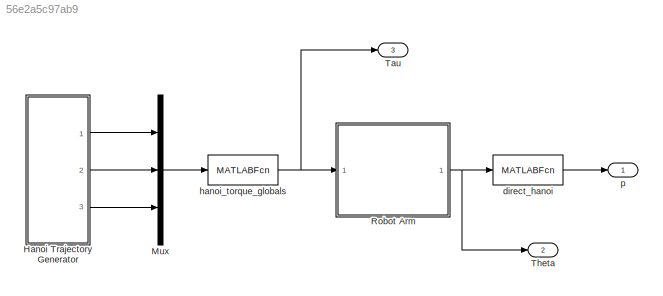
MODEL slx_56e2a5c97ab9
KIND model
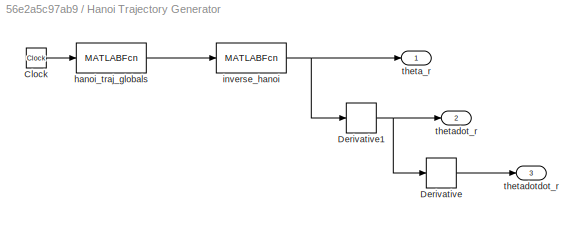
BLOCK [SubSystem] Hanoi Trajectory Generator
  Ports = [0, 3]
  RequestExecContextInheritance = off
BLOCK [Clock] Hanoi Trajectory Generator/Clock
BLOCK [Derivative] Hanoi Trajectory Generator/Derivative
BLOCK [Derivative] Hanoi Trajectory Generator/Derivative1
BLOCK [MATLABFcn] Hanoi Trajectory Generator/hanoi_traj_globals
  MATLABFcn = hanoi_traj_globals
  Ports = [1, 1]
BLOCK [MATLABFcn] Hanoi Trajectory Generator/inverse_hanoi
  MATLABFcn = inverse_hanoi
  Ports = [1, 1]
BLOCK [Outport] Hanoi Trajectory Generator/theta_r
  IconDisplay = Port number
BLOCK [Outport] Hanoi Trajectory Generator/thetadot_r
  IconDisplay = Port number
  Port = 2
BLOCK [Outport] Hanoi Trajectory Generator/thetadotdot_r
  IconDisplay = Port number
  Port = 3
BLOCK [Mux] Mux
  DisplayOption = bar
  Inputs = 3
  Ports = [3, 1]
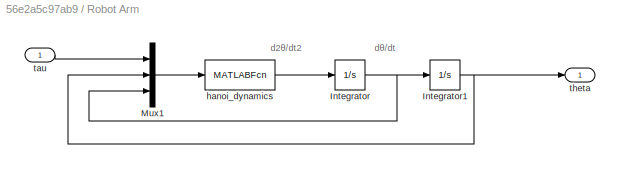
BLOCK [SubSystem] Robot Arm
  Ports = [1, 1]
  RequestExecContextInheritance = off
BLOCK [Integrator] Robot Arm/Integrator
  InitialCondition = [0 0]
  Ports = [1, 1]
BLOCK [Integrator] Robot Arm/Integrator1
  InitialCondition = [pi/2, -pi/2]
  Ports = [1, 1]
BLOCK [Mux] Robot Arm/Mux1
  DisplayOption = bar
  Inputs = 3
  Ports = [3, 1]
BLOCK [MATLABFcn] Robot Arm/hanoi_dynamics
  MATLABFcn = hanoi_dynamics
  Ports = [1, 1]
BLOCK [Inport] Robot Arm/tau
  IconDisplay = Port number
BLOCK [Outport] Robot Arm/theta
  IconDisplay = Port number
BLOCK [Outport] Tau
  IconDisplay = Port number
  Port = 3
BLOCK [Outport] Theta
  IconDisplay = Port number
  Port = 2
BLOCK [MATLABFcn] direct_hanoi
  MATLABFcn = direct_hanoi
  Ports = [1, 1]
BLOCK [MATLABFcn] hanoi_torque_globals
  MATLABFcn = hanoi_torque_globals
  Ports = [1, 1]
BLOCK [Outport] p
  IconDisplay = Port number
ANNOTATION Robot Arm: d 2 θ/dt 2
ANNOTATION Robot Arm: dθ/dt
LINE Hanoi Trajectory Generator/Clock:1 -> Hanoi Trajectory Generator/hanoi_traj_globals:1
NET Hanoi Trajectory Generator/Derivative1:1 -> Hanoi Trajectory Generator/Derivative:1, Hanoi Trajectory Generator/thetadot_r:1
LINE Hanoi Trajectory Generator/Derivative:1 -> Hanoi Trajectory Generator/thetadotdot_r:1
LINE Hanoi Trajectory Generator/hanoi_traj_globals:1 -> Hanoi Trajectory Generator/inverse_hanoi:1
NET Hanoi Trajectory Generator/inverse_hanoi:1 -> Hanoi Trajectory Generator/Derivative1:1, Hanoi Trajectory Generator/theta_r:1
LINE Hanoi Trajectory Generator:1 -> Mux:1
LINE Hanoi Trajectory Generator:2 -> Mux:2
LINE Hanoi Trajectory Generator:3 -> Mux:3
LINE Mux:1 -> hanoi_torque_globals:1
NET Robot Arm/Integrator1:1 -> Robot Arm/Mux1:2, Robot Arm/theta:1
NET Robot Arm/Integrator:1 -> Robot Arm/Integrator1:1, Robot Arm/Mux1:3
LINE Robot Arm/Mux1:1 -> Robot Arm/hanoi_dynamics:1
LINE Robot Arm/hanoi_dynamics:1 -> Robot Arm/Integrator:1
LINE Robot Arm/tau:1 -> Robot Arm/Mux1:1
NET Robot Arm:1 -> Theta:1, direct_hanoi:1
LINE direct_hanoi:1 -> p:1
NET hanoi_torque_globals:1 -> Robot Arm:1, Tau:1
note: NET lines group one-source signal fan-out (src -> all destinations, sorted); 1:1 wires keep LINE
